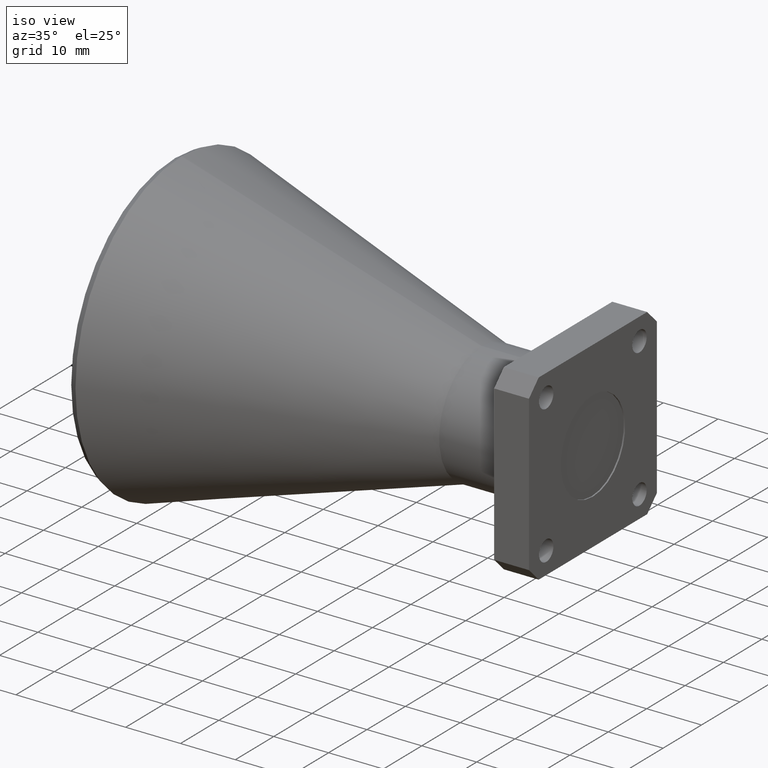
[diagram: clean part render]
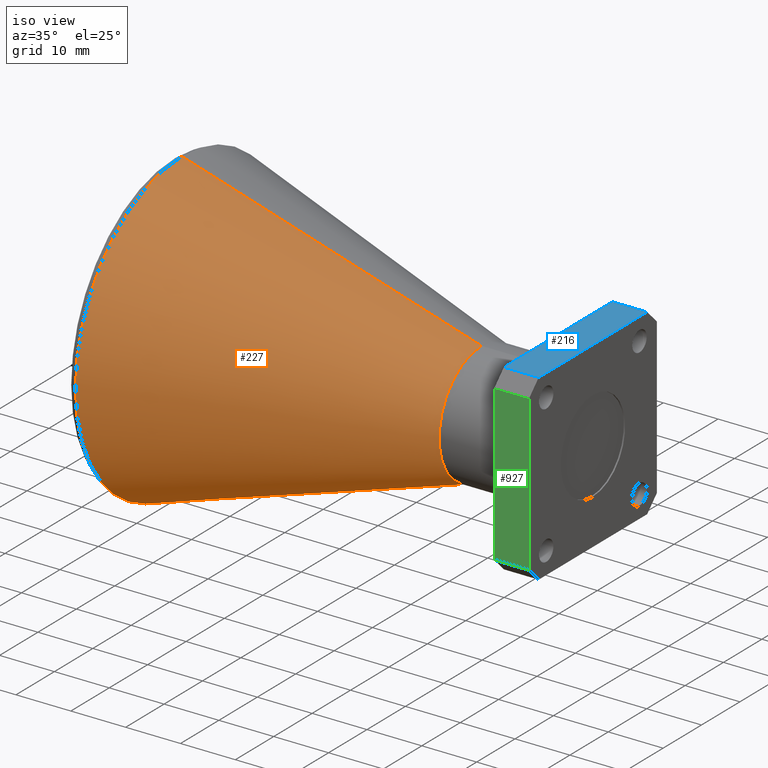
[diagram: same view with three faces highlighted in distinct colors, each labeled with its STEP entity id]
A machine part, iso view with three faces highlighted in distinct colors.
Their STEP definitions:

[orange] entity #227 — the highlighted conical surface has half-angle 16.938 deg.
#6 = LINE ( 'NONE', #218, #909 ) ;
#16 = ORIENTED_EDGE ( 'NONE', *, *, #346, .T. ) ;
#52 = CONICAL_SURFACE ( 'NONE', #365, 0.4345345844151258200, 0.2956217016742128100 ) ;
#55 = DIRECTION ( 'NONE',  ( -1.000000000000000000, -0.0000000000000000000, -0.0000000000000000000 ) ) ;
#108 = VERTEX_POINT ( 'NONE', #470 ) ;
#128 = ORIENTED_EDGE ( 'NONE', *, *, #160, .T. ) ;
#160 = EDGE_CURVE ( 'NONE', #321, #108, #700, .T. ) ;
#218 = CARTESIAN_POINT ( 'NONE',  ( 2.200000000000000200, 5.321513879228091600E-017, -0.4345345844151258200 ) ) ;
#227 = ADVANCED_FACE ( 'NONE', ( #334 ), #52, .T. ) ;
#321 = VERTEX_POINT ( 'NONE', #786 ) ;
#333 = AXIS2_PLACEMENT_3D ( 'NONE', #445, #587, #652 ) ;
#334 = FACE_OUTER_BOUND ( 'NONE', #657, .T. ) ;
#346 = EDGE_CURVE ( 'NONE', #467, #395, #762, .T. ) ;
#359 = DIRECTION ( 'NONE',  ( -0.9566212039728618800, 3.567820336118366500E-017, -0.2913346393917349800 ) ) ;
#365 = AXIS2_PLACEMENT_3D ( 'NONE', #554, #55, #914 ) ;
#395 = VERTEX_POINT ( 'NONE', #589 ) ;
#434 = CARTESIAN_POINT ( 'NONE',  ( 0.04783106019864286100, 0.0000000000000000000, 1.089967852445538700 ) ) ;
#445 = CARTESIAN_POINT ( 'NONE',  ( 0.04783106019864259000, 0.0000000000000000000, 0.0000000000000000000 ) ) ;
#467 = VERTEX_POINT ( 'NONE', #434 ) ;
#470 = CARTESIAN_POINT ( 'NONE',  ( 2.200000000000000200, 0.0000000000000000000, 0.4345345844151258200 ) ) ;
#487 = ORIENTED_EDGE ( 'NONE', *, *, #676, .T. ) ;
#554 = CARTESIAN_POINT ( 'NONE',  ( 2.200000000000000200, 0.0000000000000000000, 0.0000000000000000000 ) ) ;
#587 = DIRECTION ( 'NONE',  ( 1.000000000000000000, 0.0000000000000000000, 0.0000000000000000000 ) ) ;
#589 = CARTESIAN_POINT ( 'NONE',  ( 0.04783106019864286100, 1.334825641670943600E-016, -1.089967852445538700 ) ) ;
#629 = LINE ( 'NONE', #837, #673 ) ;
#652 = DIRECTION ( 'NONE',  ( 0.0000000000000000000, 0.0000000000000000000, -1.000000000000000000 ) ) ;
#657 = EDGE_LOOP ( 'NONE', ( #857, #128, #487, #16 ) ) ;
#673 = VECTOR ( 'NONE', #912, 39.37007874015748100 ) ;
#676 = EDGE_CURVE ( 'NONE', #108, #467, #629, .T. ) ;
#700 = CIRCLE ( 'NONE', #725, 0.4345345844151258200 ) ;
#702 = CARTESIAN_POINT ( 'NONE',  ( 2.200000000000000200, 0.0000000000000000000, 0.0000000000000000000 ) ) ;
#725 = AXIS2_PLACEMENT_3D ( 'NONE', #702, #901, #829 ) ;
#762 = CIRCLE ( 'NONE', #333, 1.089967852445538500 ) ;
#779 = EDGE_CURVE ( 'NONE', #321, #395, #6, .T. ) ;
#786 = CARTESIAN_POINT ( 'NONE',  ( 2.200000000000000200, 9.334885147968763800E-017, -0.4345345844151258200 ) ) ;
#829 = DIRECTION ( 'NONE',  ( 0.0000000000000000000, 0.0000000000000000000, 1.000000000000000000 ) ) ;
#837 = CARTESIAN_POINT ( 'NONE',  ( 2.200000000000000200, 0.0000000000000000000, 0.4345345844151258200 ) ) ;
#857 = ORIENTED_EDGE ( 'NONE', *, *, #779, .F. ) ;
#901 = DIRECTION ( 'NONE',  ( -1.000000000000000000, -0.0000000000000000000, -0.0000000000000000000 ) ) ;
#909 = VECTOR ( 'NONE', #359, 39.37007874015748100 ) ;
#912 = DIRECTION ( 'NONE',  ( -0.9566212039728618800, 0.0000000000000000000, 0.2913346393917349800 ) ) ;
#914 = DIRECTION ( 'NONE',  ( 0.0000000000000000000, 0.0000000000000000000, 1.000000000000000000 ) ) ;

[blue] entity #216 — the highlighted planar face has unit normal (0, -0, 1).
#77 = CARTESIAN_POINT ( 'NONE',  ( -3.937007874019685500E-005, -0.5560000000000006000, 0.6560000000000000300 ) ) ;
#92 = EDGE_CURVE ( 'NONE', #142, #797, #736, .T. ) ;
#103 = CARTESIAN_POINT ( 'NONE',  ( 2.750000000000000400, -6.829619984160658000E-017, 0.6560000000000000300 ) ) ;
#105 = DIRECTION ( 'NONE',  ( -0.0000000000000000000, 1.000000000000000000, 1.041100607341563800E-016 ) ) ;
#142 = VERTEX_POINT ( 'NONE', #409 ) ;
#153 = VERTEX_POINT ( 'NONE', #633 ) ;
#154 = VERTEX_POINT ( 'NONE', #202 ) ;
#174 = ORIENTED_EDGE ( 'NONE', *, *, #92, .F. ) ;
#197 = CARTESIAN_POINT ( 'NONE',  ( 2.750000000000000400, 0.5559999999999993800, 0.6560000000000000300 ) ) ;
#201 = EDGE_CURVE ( 'NONE', #153, #797, #320, .T. ) ;
#202 = CARTESIAN_POINT ( 'NONE',  ( 3.000000000000000400, -0.5560000000000003800, 0.6560000000000000300 ) ) ;
#206 = ORIENTED_EDGE ( 'NONE', *, *, #656, .F. ) ;
#216 = ADVANCED_FACE ( 'NONE', ( #381 ), #257, .T. ) ;
#257 = PLANE ( 'NONE',  #464 ) ;
#263 = LINE ( 'NONE', #555, #789 ) ;
#320 = LINE ( 'NONE', #197, #391 ) ;
#343 = DIRECTION ( 'NONE',  ( 0.0000000000000000000, -1.000000000000000000, -1.041100607341563500E-016 ) ) ;
#371 = ORIENTED_EDGE ( 'NONE', *, *, #745, .T. ) ;
#381 = FACE_OUTER_BOUND ( 'NONE', #647, .T. ) ;
#386 = VECTOR ( 'NONE', #790, 39.37007874015748100 ) ;
#391 = VECTOR ( 'NONE', #402, 39.37007874015748100 ) ;
#402 = DIRECTION ( 'NONE',  ( -1.000000000000000000, 0.0000000000000000000, 0.0000000000000000000 ) ) ;
#409 = CARTESIAN_POINT ( 'NONE',  ( 2.750000000000000400, -0.5560000000000003800, 0.6560000000000000300 ) ) ;
#417 = DIRECTION ( 'NONE',  ( 0.0000000000000000000, -1.041100607341563800E-016, 1.000000000000000000 ) ) ;
#464 = AXIS2_PLACEMENT_3D ( 'NONE', #767, #417, #770 ) ;
#497 = CARTESIAN_POINT ( 'NONE',  ( 2.750000000000000400, 0.5559999999999991600, 0.6560000000000000300 ) ) ;
#555 = CARTESIAN_POINT ( 'NONE',  ( 3.000000000000000400, -6.829619984160658000E-017, 0.6560000000000000300 ) ) ;
#586 = LINE ( 'NONE', #77, #386 ) ;
#633 = CARTESIAN_POINT ( 'NONE',  ( 3.000000000000000400, 0.5559999999999993800, 0.6560000000000000300 ) ) ;
#647 = EDGE_LOOP ( 'NONE', ( #174, #371, #206, #649 ) ) ;
#649 = ORIENTED_EDGE ( 'NONE', *, *, #201, .T. ) ;
#656 = EDGE_CURVE ( 'NONE', #153, #154, #263, .T. ) ;
#736 = LINE ( 'NONE', #103, #827 ) ;
#745 = EDGE_CURVE ( 'NONE', #142, #154, #586, .T. ) ;
#767 = CARTESIAN_POINT ( 'NONE',  ( -3.937007874019685500E-005, -6.829619984160658000E-017, 0.6560000000000000300 ) ) ;
#770 = DIRECTION ( 'NONE',  ( 0.0000000000000000000, -1.000000000000000000, -1.041100607341563800E-016 ) ) ;
#789 = VECTOR ( 'NONE', #343, 39.37007874015748100 ) ;
#790 = DIRECTION ( 'NONE',  ( 1.000000000000000000, 0.0000000000000000000, 0.0000000000000000000 ) ) ;
#797 = VERTEX_POINT ( 'NONE', #497 ) ;
#827 = VECTOR ( 'NONE', #105, 39.37007874015748100 ) ;

[green] entity #927 — the highlighted planar face has unit normal (0, -1, -0).
#12 = VECTOR ( 'NONE', #124, 39.37007874015748100 ) ;
#49 = VECTOR ( 'NONE', #746, 39.37007874015748100 ) ;
#53 = LINE ( 'NONE', #118, #304 ) ;
#61 = EDGE_CURVE ( 'NONE', #316, #295, #783, .T. ) ;
#65 = ORIENTED_EDGE ( 'NONE', *, *, #178, .T. ) ;
#104 = CARTESIAN_POINT ( 'NONE',  ( -3.937007874019685500E-005, -0.6560000000000000300, 0.0000000000000000000 ) ) ;
#118 = CARTESIAN_POINT ( 'NONE',  ( -3.937007874019685500E-005, -0.6560000000000000300, 0.5559999999999993800 ) ) ;
#124 = DIRECTION ( 'NONE',  ( 1.000000000000000000, 0.0000000000000000000, 0.0000000000000000000 ) ) ;
#178 = EDGE_CURVE ( 'NONE', #727, #295, #392, .T. ) ;
#204 = EDGE_CURVE ( 'NONE', #316, #839, #53, .T. ) ;
#222 = LINE ( 'NONE', #683, #49 ) ;
#295 = VERTEX_POINT ( 'NONE', #709 ) ;
#304 = VECTOR ( 'NONE', #475, 39.37007874015748100 ) ;
#316 = VERTEX_POINT ( 'NONE', #577 ) ;
#336 = EDGE_LOOP ( 'NONE', ( #444, #689, #539, #65 ) ) ;
#383 = DIRECTION ( 'NONE',  ( 0.0000000000000000000, 0.0000000000000000000, -1.000000000000000000 ) ) ;
#392 = LINE ( 'NONE', #557, #12 ) ;
#397 = AXIS2_PLACEMENT_3D ( 'NONE', #104, #819, #383 ) ;
#444 = ORIENTED_EDGE ( 'NONE', *, *, #61, .F. ) ;
#457 = PLANE ( 'NONE',  #397 ) ;
#475 = DIRECTION ( 'NONE',  ( -1.000000000000000000, 0.0000000000000000000, 0.0000000000000000000 ) ) ;
#536 = VECTOR ( 'NONE', #615, 39.37007874015748100 ) ;
#539 = ORIENTED_EDGE ( 'NONE', *, *, #597, .F. ) ;
#557 = CARTESIAN_POINT ( 'NONE',  ( 3.000000000000000400, -0.6560000000000000300, -0.5559999999999994900 ) ) ;
#577 = CARTESIAN_POINT ( 'NONE',  ( 3.000000000000000400, -0.6560000000000000300, 0.5559999999999993800 ) ) ;
#597 = EDGE_CURVE ( 'NONE', #727, #839, #222, .T. ) ;
#615 = DIRECTION ( 'NONE',  ( 0.0000000000000000000, 0.0000000000000000000, -1.000000000000000000 ) ) ;
#669 = CARTESIAN_POINT ( 'NONE',  ( 2.750000000000000400, -0.6560000000000000300, 0.5559999999999993800 ) ) ;
#683 = CARTESIAN_POINT ( 'NONE',  ( 2.750000000000000400, -0.6560000000000000300, 0.0000000000000000000 ) ) ;
#689 = ORIENTED_EDGE ( 'NONE', *, *, #204, .T. ) ;
#709 = CARTESIAN_POINT ( 'NONE',  ( 3.000000000000000400, -0.6560000000000000300, -0.5559999999999994900 ) ) ;
#727 = VERTEX_POINT ( 'NONE', #834 ) ;
#746 = DIRECTION ( 'NONE',  ( 0.0000000000000000000, 0.0000000000000000000, 1.000000000000000000 ) ) ;
#783 = LINE ( 'NONE', #883, #536 ) ;
#819 = DIRECTION ( 'NONE',  ( 0.0000000000000000000, -1.000000000000000000, -0.0000000000000000000 ) ) ;
#834 = CARTESIAN_POINT ( 'NONE',  ( 2.750000000000000400, -0.6560000000000000300, -0.5559999999999994900 ) ) ;
#839 = VERTEX_POINT ( 'NONE', #669 ) ;
#883 = CARTESIAN_POINT ( 'NONE',  ( 3.000000000000000400, -0.6560000000000000300, 0.0000000000000000000 ) ) ;
#898 = FACE_OUTER_BOUND ( 'NONE', #336, .T. ) ;
#927 = ADVANCED_FACE ( 'NONE', ( #898 ), #457, .T. ) ;